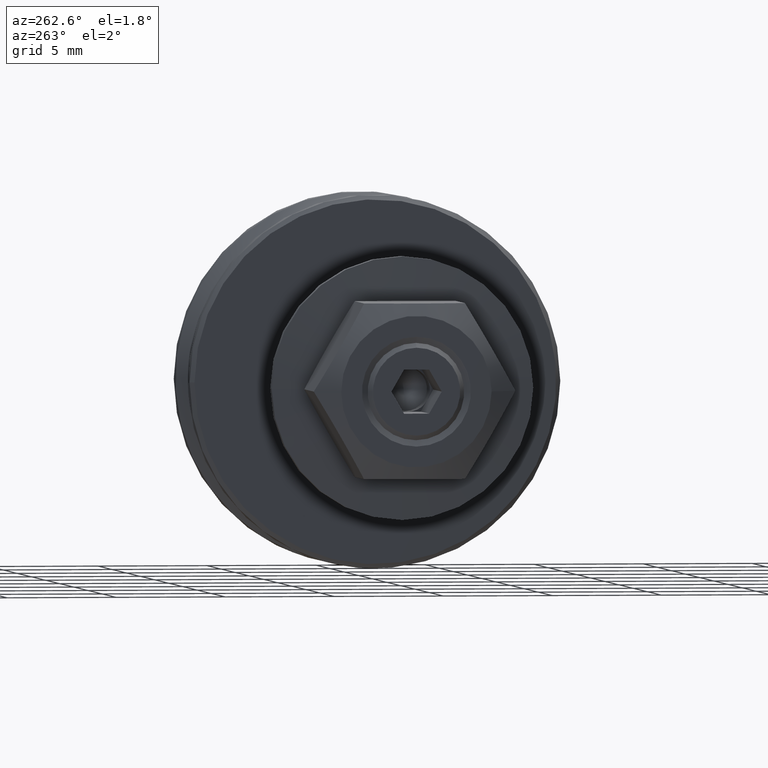
[diagram: clean part render]
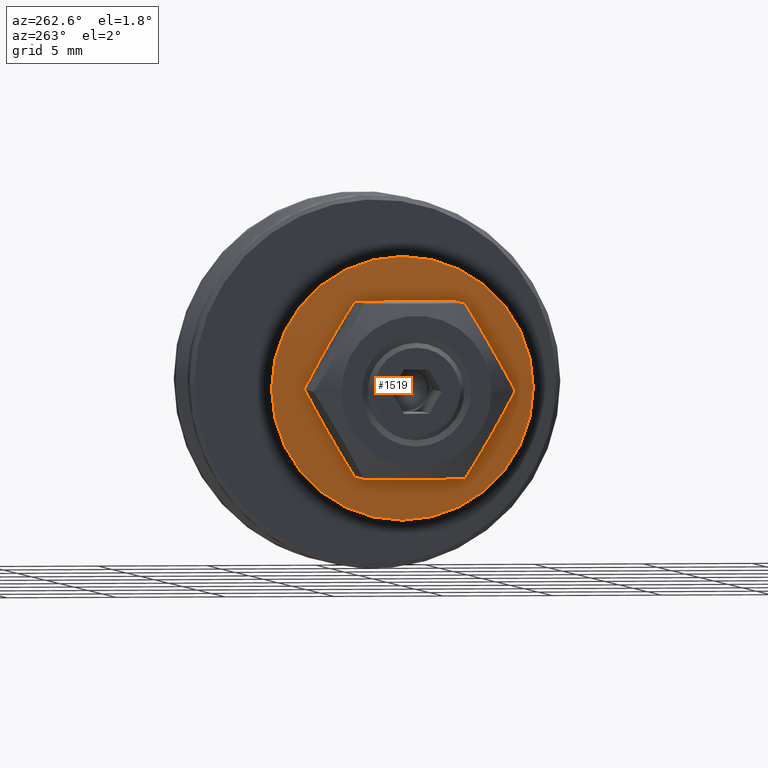
[diagram: same view with one face highlighted and labeled with its STEP entity id]
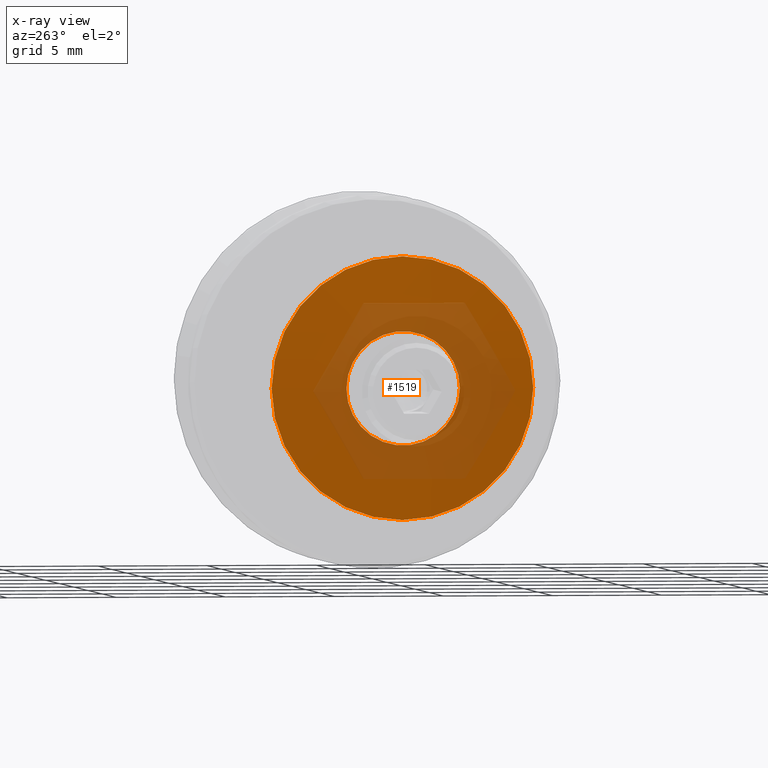
[diagram: x-ray of the same camera — body ghosted, the highlighted face saturated]
A machine part, auxiliary view. The second image highlights one B-rep face of the part: STEP entity #1519.
The next image is the same camera in x-ray: the body ghosted, the highlighted face saturated — about 38% of this face is hidden behind the body in this view.
In plain terms, the highlighted conical surface has half-angle 85.795 deg.
Its self-contained STEP definition (entity closure, byte-faithful):
#210=FACE_OUTER_BOUND('',#314,.T.);
#314=EDGE_LOOP('',(#1254,#1255,#1256,#1257));
#423=LINE('',#2637,#538);
#538=VECTOR('',#2172,4.3);
#633=CIRCLE('',#1802,6.);
#634=CIRCLE('',#1803,2.6);
#745=VERTEX_POINT('',#2634);
#746=VERTEX_POINT('',#2636);
#924=EDGE_CURVE('',#745,#745,#633,.T.);
#925=EDGE_CURVE('',#745,#746,#423,.T.);
#926=EDGE_CURVE('',#746,#746,#634,.T.);
#1254=ORIENTED_EDGE('',*,*,#924,.F.);
#1255=ORIENTED_EDGE('',*,*,#925,.T.);
#1256=ORIENTED_EDGE('',*,*,#926,.T.);
#1257=ORIENTED_EDGE('',*,*,#925,.F.);
#1458=CONICAL_SURFACE('',#1801,4.3,1.49739900089328);
#1519=ADVANCED_FACE('',(#210),#1458,.T.);
#1801=AXIS2_PLACEMENT_3D('',#2633,#2168,#2169);
#1802=AXIS2_PLACEMENT_3D('',#2635,#2170,#2171);
#1803=AXIS2_PLACEMENT_3D('',#2638,#2173,#2174);
#2168=DIRECTION('center_axis',(0.,-1.,0.));
#2169=DIRECTION('ref_axis',(1.,0.,0.));
#2170=DIRECTION('center_axis',(0.,-1.,0.));
#2171=DIRECTION('ref_axis',(1.,0.,0.));
#2172=DIRECTION('',(0.997307625290336,0.0733314430360542,1.22134959107706E-16));
#2173=DIRECTION('center_axis',(0.,-1.,0.));
#2174=DIRECTION('ref_axis',(1.,0.,0.));
#2633=CARTESIAN_POINT('Origin',(0.,0.625,0.));
#2634=CARTESIAN_POINT('',(-6.,0.5,-7.34788079488412E-16));
#2635=CARTESIAN_POINT('Origin',(0.,0.5,0.));
#2636=CARTESIAN_POINT('',(-2.6,0.75,-3.18408167778312E-16));
#2637=CARTESIAN_POINT('',(-4.3,0.625,-5.26598123633362E-16));
#2638=CARTESIAN_POINT('Origin',(0.,0.75,0.));